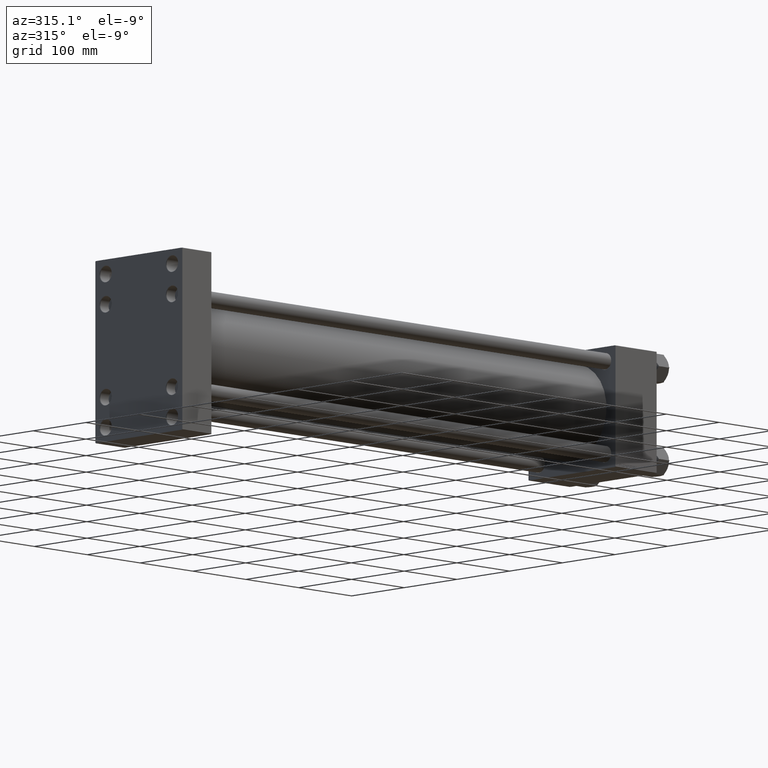
[diagram: clean part render]
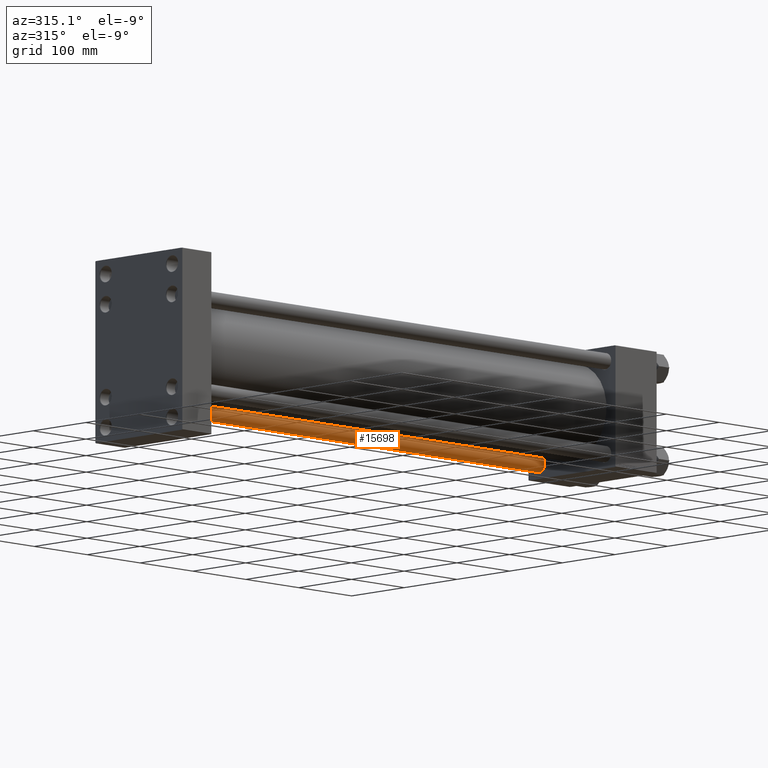
[diagram: same view with one face highlighted and labeled with its STEP entity id]
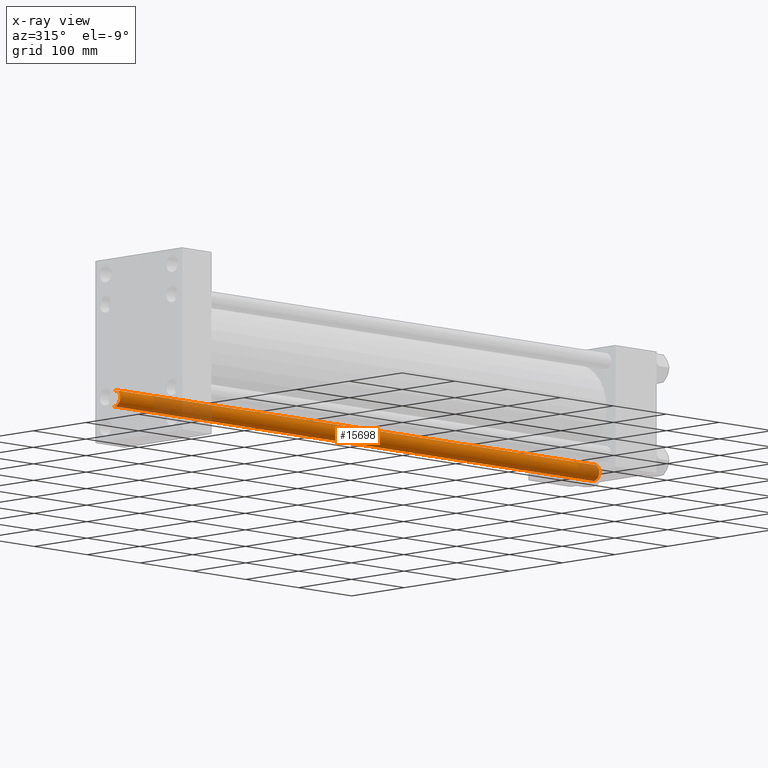
[diagram: x-ray of the same camera — body ghosted, the highlighted face saturated]
A machine part, auxiliary view. The second image highlights one B-rep face of the part: STEP entity #15698.
The next image is the same camera in x-ray: the body ghosted, the highlighted face saturated — about 15% of this face is hidden behind the body in this view.
In plain terms, the highlighted cylindrical surface (edge-blend (fillet) strip) has radius 11 mm, axis along (-1, 0, 0).
Its self-contained STEP definition (entity closure, byte-faithful):
#3713 = LINE ( 'NONE', #19961, #16670 ) ;
#3715 = VERTEX_POINT ( 'NONE', #5595 ) ;
#4010 = EDGE_CURVE ( 'NONE', #30651, #43443, #37398, .T. ) ;
#4178 = DIRECTION ( 'NONE',  ( 1.000000000000000000, 0.000000000000000000, 0.000000000000000000 ) ) ;
#4474 = VERTEX_POINT ( 'NONE', #45297 ) ;
#5595 = CARTESIAN_POINT ( 'NONE',  ( -11.00000000000000000, 0.000000000000000000, 0.5000000000009441337 ) ) ;
#6058 = DIRECTION ( 'NONE',  ( 0.000000000000000000, 0.000000000000000000, -1.000000000000000000 ) ) ;
#7653 = CARTESIAN_POINT ( 'NONE',  ( 0.000000000000000000, 0.000000000000000000, 907.0000000000000000 ) ) ;
#11638 = DIRECTION ( 'NONE',  ( -1.000000000000000000, 0.000000000000000000, 0.000000000000000000 ) ) ;
#12462 = ORIENTED_EDGE ( 'NONE', *, *, #20485, .T. ) ;
#13207 = CARTESIAN_POINT ( 'NONE',  ( 0.000000000000000000, 0.000000000000000000, 0.5000000000009441337 ) ) ;
#13501 = VECTOR ( 'NONE', #27542, 1000.000000000000000 ) ;
#15698 = ADVANCED_FACE ( 'NONE', ( #52073 ), #24142, .T. ) ;
#16670 = VECTOR ( 'NONE', #24990, 1000.000000000000000 ) ;
#17502 = DIRECTION ( 'NONE',  ( 1.000000000000000000, 0.000000000000000000, 0.000000000000000000 ) ) ;
#19961 = CARTESIAN_POINT ( 'NONE',  ( 11.00000000000000000, 1.347111479062088207E-15, 907.0000000000000000 ) ) ;
#20333 = LINE ( 'NONE', #52273, #13501 ) ;
#20485 = EDGE_CURVE ( 'NONE', #43443, #4474, #3713, .T. ) ;
#21248 = ORIENTED_EDGE ( 'NONE', *, *, #4010, .T. ) ;
#24142 = CYLINDRICAL_SURFACE ( 'NONE', #41995, 11.00000000000000000 ) ;
#24401 = DIRECTION ( 'NONE',  ( -0.000000000000000000, -0.000000000000000000, -1.000000000000000000 ) ) ;
#24414 = DIRECTION ( 'NONE',  ( -0.000000000000000000, -0.000000000000000000, 1.000000000000000000 ) ) ;
#24990 = DIRECTION ( 'NONE',  ( -0.000000000000000000, -0.000000000000000000, -1.000000000000000000 ) ) ;
#26575 = EDGE_LOOP ( 'NONE', ( #21248, #12462, #47645, #37822 ) ) ;
#27542 = DIRECTION ( 'NONE',  ( -0.000000000000000000, -0.000000000000000000, -1.000000000000000000 ) ) ;
#30651 = VERTEX_POINT ( 'NONE', #42428 ) ;
#35426 = CARTESIAN_POINT ( 'NONE',  ( 11.00000000000000000, 1.347111479062088207E-15, 906.5000000000006821 ) ) ;
#36966 = AXIS2_PLACEMENT_3D ( 'NONE', #13207, #24414, #4178 ) ;
#37398 = CIRCLE ( 'NONE', #39967, 11.00000000000000000 ) ;
#37822 = ORIENTED_EDGE ( 'NONE', *, *, #51719, .F. ) ;
#39967 = AXIS2_PLACEMENT_3D ( 'NONE', #41692, #6058, #17502 ) ;
#40823 = EDGE_CURVE ( 'NONE', #4474, #3715, #41227, .T. ) ;
#41227 = CIRCLE ( 'NONE', #36966, 11.00000000000000000 ) ;
#41692 = CARTESIAN_POINT ( 'NONE',  ( 0.000000000000000000, 0.000000000000000000, 906.5000000000006821 ) ) ;
#41995 = AXIS2_PLACEMENT_3D ( 'NONE', #7653, #24401, #11638 ) ;
#42428 = CARTESIAN_POINT ( 'NONE',  ( -11.00000000000000000, 0.000000000000000000, 906.5000000000006821 ) ) ;
#43443 = VERTEX_POINT ( 'NONE', #35426 ) ;
#45297 = CARTESIAN_POINT ( 'NONE',  ( 11.00000000000000000, 1.347111479062088207E-15, 0.5000000000009441337 ) ) ;
#47645 = ORIENTED_EDGE ( 'NONE', *, *, #40823, .T. ) ;
#51719 = EDGE_CURVE ( 'NONE', #30651, #3715, #20333, .T. ) ;
#52073 = FACE_OUTER_BOUND ( 'NONE', #26575, .T. ) ;
#52273 = CARTESIAN_POINT ( 'NONE',  ( -11.00000000000000000, 0.000000000000000000, 907.0000000000000000 ) ) ;